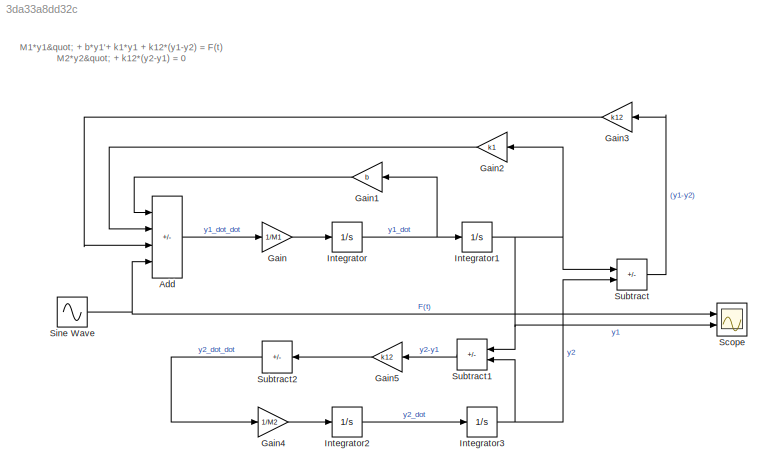
MODEL slx_3da33a8dd32c
KIND model
CONFIG AbsTol = auto
CONFIG EnableMultiTasking = off
CONFIG FixedStep = auto
CONFIG MaxStep = auto
CONFIG MinStep = auto
CONFIG RelTol = 1e-3
CONFIG SampleTimeConstraint = Unconstrained
CONFIG SolverName = VariableStepAuto
CONFIG StartTime = 0.0
CONFIG StopTime = 10.0
BLOCK [Sum] Add
  IconShape = rectangular
  Inputs = ---+
  Ports = [4, 1]
BLOCK [Gain] Gain
  Gain = 1/M1
BLOCK [Gain] Gain1
  Gain = b
  NameLocation = top
BLOCK [Gain] Gain2
  Gain = k1
  NameLocation = top
BLOCK [Gain] Gain3
  Gain = k12
  NameLocation = top
BLOCK [Gain] Gain4
  Gain = 1/M2
BLOCK [Gain] Gain5
  Gain = k12
  NameLocation = top
BLOCK [Integrator] Integrator
  Ports = [1, 1]
BLOCK [Integrator] Integrator1
  Ports = [1, 1]
BLOCK [Integrator] Integrator2
  Ports = [1, 1]
BLOCK [Integrator] Integrator3
  Ports = [1, 1]
BLOCK [Scope] Scope
  Floating = off
  NumInputPorts = 2
  Ports = [2]
  ScopeSpecificationString = Simulink.scopes.TimeScopeBlockCfg('CurrentConfiguration', extmgr.ConfigurationSet(extmgr.Configuration('Core','General UI',true),extmgr.Configuration('Core','Source UI',true),extmgr.Configuration('Sources','WiredSimulink',true),extmgr.Configuration('Visuals','Time Domain',true),extmgr.Configuration('Tools','Plot Navigation',true),extmgr.Configuration('Tools','Measurements',true)),'Version','2020b'...<+1ch>
BLOCK [Sin] Sine Wave
  Ports = [0, 1]
  SampleTime = 0
BLOCK [Sum] Subtract
  IconShape = rectangular
  Inputs = +-
  Ports = [2, 1]
BLOCK [Sum] Subtract1
  IconShape = rectangular
  Inputs = -+
  NameLocation = top
  Ports = [2, 1]
BLOCK [Sum] Subtract2
  IconShape = rectangular
  Inputs = -
  NameLocation = top
  Ports = [1, 1]
ANNOTATION (root): M1*y1" + b*y1'+ k1*y1 + k12*(y1-y2) = F(t) M2*y2" + k12*(y2-y1) = 0
LINE Add:1 -> Gain:1
LINE Gain1:1 -> Add:1
LINE Gain2:1 -> Add:2
LINE Gain3:1 -> Add:3
LINE Gain4:1 -> Integrator2:1
LINE Gain5:1 -> Subtract2:1
LINE Gain:1 -> Integrator:1
NET Integrator1:1 -> Gain2:1, Scope:2, Subtract1:1, Subtract:1
LINE Integrator2:1 -> Integrator3:1
NET Integrator3:1 -> Subtract1:2, Subtract:2
NET Integrator:1 -> Gain1:1, Integrator1:1
NET Sine Wave:1 -> Add:4, Scope:1
LINE Subtract1:1 -> Gain5:1
LINE Subtract2:1 -> Gain4:1
LINE Subtract:1 -> Gain3:1
note: NET lines group one-source signal fan-out (src -> all destinations, sorted); 1:1 wires keep LINE
